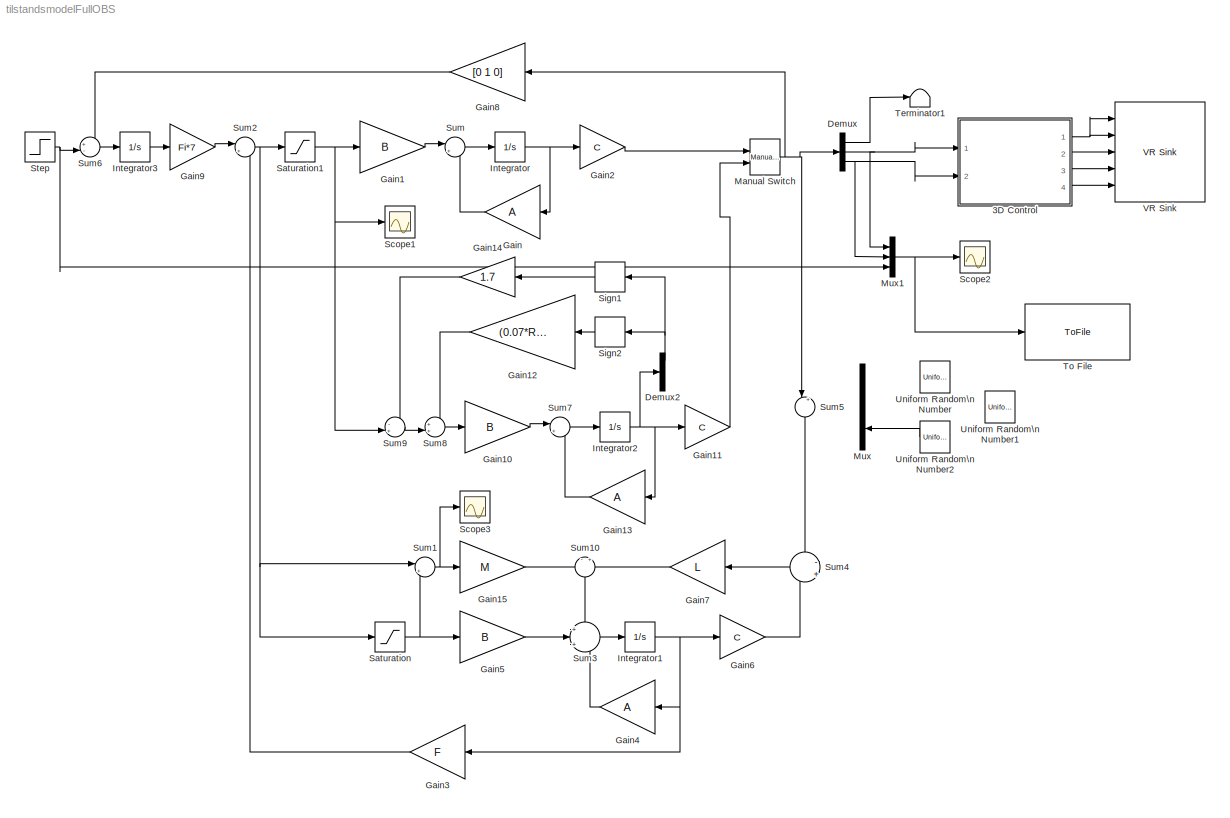
MODEL tilstandsmodelFullOBS
KIND model
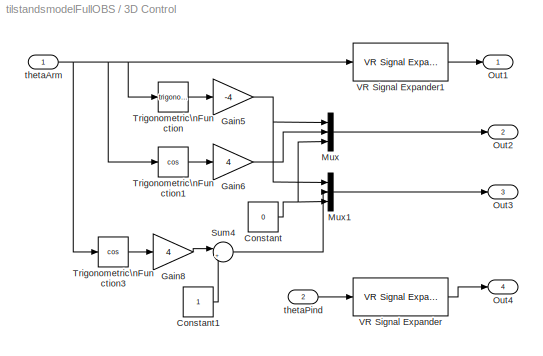
BLOCK [SubSystem] 3D Control
  FunctionWithSeparateData = off
  MaskHideContents = off
  MinAlgLoopOccurrences = off
  Opaque = off
  Ports = [2, 4]
  PropExecContextOutsideSubsystem = off
  RTWSystemCode = Auto
  RequestExecContextInheritance = off
  SID = 9
BLOCK [Constant] 3D Control/Constant
  OutDataType = fixdt(1, 16)
  OutScaling = 2^0
  SID = 12
  Value = 0
BLOCK [Constant] 3D Control/Constant1
  OutDataType = fixdt(1, 16)
  OutScaling = 2^0
  SID = 13
BLOCK [Gain] 3D Control/Gain5
  Gain = -4
  OutDataType = fixdt(1, 16)
  OutDataTypeMode = Inherit via internal rule
  OutDataTypeStr = Inherit: Inherit via internal rule
  OutScaling = 2^0
  ParamDataTypeStr = Inherit: Inherit via internal rule
  ParameterDataType = fixdt(1, 16)
  ParameterDataTypeMode = Inherit via internal rule
  ParameterScaling = 2^0
  SID = 14
  SaturateOnIntegerOverflow = off
BLOCK [Gain] 3D Control/Gain6
  Gain = 4
  OutDataType = fixdt(1, 16)
  OutDataTypeMode = Inherit via internal rule
  OutDataTypeStr = Inherit: Inherit via internal rule
  OutScaling = 2^0
  ParamDataTypeStr = Inherit: Inherit via internal rule
  ParameterDataType = fixdt(1, 16)
  ParameterDataTypeMode = Inherit via internal rule
  ParameterScaling = 2^0
  SID = 15
  SaturateOnIntegerOverflow = off
BLOCK [Gain] 3D Control/Gain8
  Gain = 4
  OutDataType = fixdt(1, 16)
  OutDataTypeMode = Inherit via internal rule
  OutDataTypeStr = Inherit: Inherit via internal rule
  OutScaling = 2^0
  ParamDataTypeStr = Inherit: Inherit via internal rule
  ParameterDataType = fixdt(1, 16)
  ParameterDataTypeMode = Inherit via internal rule
  ParameterScaling = 2^0
  SID = 16
  SaturateOnIntegerOverflow = off
BLOCK [Mux] 3D Control/Mux
  DisplayOption = bar
  Inputs = 3
  Ports = [3, 1]
  SID = 17
BLOCK [Mux] 3D Control/Mux1
  DisplayOption = bar
  Inputs = 3
  Ports = [3, 1]
  SID = 18
BLOCK [Outport] 3D Control/Out1
  IconDisplay = Port number
  OutDataType = fixdt(1, 16)
  OutScaling = 2^0
  SID = 25
BLOCK [Outport] 3D Control/Out2
  IconDisplay = Port number
  OutDataType = fixdt(1, 16)
  OutScaling = 2^0
  Port = 2
  SID = 26
BLOCK [Outport] 3D Control/Out3
  IconDisplay = Port number
  OutDataType = fixdt(1, 16)
  OutScaling = 2^0
  Port = 3
  SID = 27
BLOCK [Outport] 3D Control/Out4
  IconDisplay = Port number
  OutDataType = fixdt(1, 16)
  OutScaling = 2^0
  Port = 4
  SID = 28
BLOCK [Sum] 3D Control/Sum4
  IconShape = round
  InputSameDT = off
  Inputs = |+-
  OutDataType = fixdt(1, 16)
  OutDataTypeMode = Inherit via internal rule
  OutDataTypeStr = Inherit: Inherit via internal rule
  OutScaling = 2^0
  Ports = [2, 1]
  SID = 19
  SaturateOnIntegerOverflow = off
BLOCK [Trigonometry] 3D Control/Trigonometric\nFunction
  Ports = [1, 1]
  SID = 20
BLOCK [Trigonometry] 3D Control/Trigonometric\nFunction1
  Operator = cos
  Ports = [1, 1]
  SID = 21
BLOCK [Trigonometry] 3D Control/Trigonometric\nFunction3
  Operator = cos
  Ports = [1, 1]
  SID = 22
BLOCK [Reference] 3D Control/VR Signal Expander  REF=vrlib/VR Signal Expander
  FunctionWithSeparateData = off
  Ports = [1, 1]
  RTWMemSecDataConstants = Inherit from model
  RTWMemSecDataInternal = Inherit from model
  RTWMemSecDataParameters = Inherit from model
  RTWMemSecFuncExecute = Inherit from model
  RTWMemSecFuncInitTerm = Inherit from model
  SID = 81
  ShowPortLabels = FromPortIcon
  SourceBlock = vrlib/VR Signal Expander
  SourceType = VR Signal Expander
  SystemSampleTime = -1
  outidx = [4]
  outwidth = 4
BLOCK [Reference] 3D Control/VR Signal Expander1  REF=vrlib/VR Signal Expander
  FunctionWithSeparateData = off
  Ports = [1, 1]
  RTWMemSecDataConstants = Inherit from model
  RTWMemSecDataInternal = Inherit from model
  RTWMemSecDataParameters = Inherit from model
  RTWMemSecFuncExecute = Inherit from model
  RTWMemSecFuncInitTerm = Inherit from model
  SID = 82
  ShowPortLabels = FromPortIcon
  SourceBlock = vrlib/VR Signal Expander
  SourceType = VR Signal Expander
  SystemSampleTime = -1
  outidx = [4]
  outwidth = 4
BLOCK [Inport] 3D Control/thetaArm
  IconDisplay = Port number
  OutDataType = fixdt(1, 16)
  OutScaling = 2^0
  SID = 10
BLOCK [Inport] 3D Control/thetaPind
  IconDisplay = Port number
  OutDataType = fixdt(1, 16)
  OutScaling = 2^0
  Port = 2
  SID = 11
BLOCK [Demux] Demux
  DisplayOption = bar
  Outputs = 3
  Ports = [1, 3]
  SID = 8
BLOCK [Demux] Demux2
  DisplayOption = bar
  Ports = [1, 4]
  SID = 255
BLOCK [Gain] Gain
  Gain = A
  Multiplication = Matrix(K*u)
  OutDataType = fixdt(1, 16)
  OutDataTypeMode = Inherit via internal rule
  OutDataTypeStr = Inherit: Inherit via internal rule
  OutScaling = 2^0
  ParamDataTypeStr = Inherit: Inherit via internal rule
  ParameterDataType = fixdt(1, 16)
  ParameterDataTypeMode = Inherit via internal rule
  ParameterScaling = 2^0
  SID = 2
  SaturateOnIntegerOverflow = off
BLOCK [Gain] Gain1
  Gain = B
  Multiplication = Matrix(K*u)
  OutDataType = fixdt(1, 16)
  OutDataTypeMode = Inherit via internal rule
  OutDataTypeStr = Inherit: Inherit via internal rule
  OutScaling = 2^0
  ParamDataTypeStr = Inherit: Inherit via internal rule
  ParameterDataType = fixdt(1, 16)
  ParameterDataTypeMode = Inherit via internal rule
  ParameterScaling = 2^0
  SID = 3
  SaturateOnIntegerOverflow = off
BLOCK [Gain] Gain10
  Gain = B
  Multiplication = Matrix(K*u)
  OutDataType = fixdt(1, 16)
  OutDataTypeMode = Inherit via internal rule
  OutDataTypeStr = Inherit: Inherit via internal rule
  OutScaling = 2^0
  ParamDataTypeStr = Inherit: Inherit via internal rule
  ParameterDataType = fixdt(1, 16)
  ParameterDataTypeMode = Inherit via internal rule
  ParameterScaling = 2^0
  SID = 256
  SaturateOnIntegerOverflow = off
BLOCK [Gain] Gain11
  Gain = C
  Multiplication = Matrix(K*u)
  OutDataType = fixdt(1, 16)
  OutDataTypeMode = Inherit via internal rule
  OutDataTypeStr = Inherit: Inherit via internal rule
  OutScaling = 2^0
  ParamDataTypeStr = Inherit: Inherit via internal rule
  ParameterDataType = fixdt(1, 16)
  ParameterDataTypeMode = Inherit via internal rule
  ParameterScaling = 2^0
  SID = 257
  SaturateOnIntegerOverflow = off
BLOCK [Gain] Gain12
  Gain = (0.07*Rm)/Km
  OutDataType = fixdt(1, 16)
  OutDataTypeMode = Inherit via internal rule
  OutDataTypeStr = Inherit: Inherit via internal rule
  OutScaling = 2^0
  ParamDataTypeStr = Inherit: Inherit via internal rule
  ParameterDataType = fixdt(1, 16)
  ParameterDataTypeMode = Inherit via internal rule
  ParameterScaling = 2^0
  SID = 258
  SaturateOnIntegerOverflow = off
BLOCK [Gain] Gain13
  Gain = A
  Multiplication = Matrix(K*u)
  OutDataType = fixdt(1, 16)
  OutDataTypeMode = Inherit via internal rule
  OutDataTypeStr = Inherit: Inherit via internal rule
  OutScaling = 2^0
  ParamDataTypeStr = Inherit: Inherit via internal rule
  ParameterDataType = fixdt(1, 16)
  ParameterDataTypeMode = Inherit via internal rule
  ParameterScaling = 2^0
  SID = 259
  SaturateOnIntegerOverflow = off
BLOCK [Gain] Gain14
  Gain = 1.7
  OutDataType = fixdt(1, 16)
  OutDataTypeMode = Inherit via internal rule
  OutDataTypeStr = Inherit: Inherit via internal rule
  OutScaling = 2^0
  ParamDataTypeStr = Inherit: Inherit via internal rule
  ParameterDataType = fixdt(1, 16)
  ParameterDataTypeMode = Inherit via internal rule
  ParameterScaling = 2^0
  SID = 260
  SaturateOnIntegerOverflow = off
BLOCK [Gain] Gain15
  Gain = M
  Multiplication = Matrix(K*u)
  OutDataType = fixdt(1, 16)
  OutDataTypeMode = Inherit via internal rule
  OutDataTypeStr = Inherit: Inherit via internal rule
  OutScaling = 2^0
  ParamDataTypeStr = Inherit: Inherit via internal rule
  ParameterDataType = fixdt(1, 16)
  ParameterDataTypeMode = Inherit via internal rule
  ParameterScaling = 2^0
  SID = 245
  SaturateOnIntegerOverflow = off
BLOCK [Gain] Gain2
  Gain = C
  Multiplication = Matrix(K*u)
  OutDataType = fixdt(1, 16)
  OutDataTypeMode = Inherit via internal rule
  OutDataTypeStr = Inherit: Inherit via internal rule
  OutScaling = 2^0
  ParamDataTypeStr = Inherit: Inherit via internal rule
  ParameterDataType = fixdt(1, 16)
  ParameterDataTypeMode = Inherit via internal rule
  ParameterScaling = 2^0
  SID = 4
  SaturateOnIntegerOverflow = off
BLOCK [Gain] Gain3
  Gain = F
  Multiplication = Matrix(K*u)
  OutDataType = fixdt(1, 16)
  OutDataTypeMode = Inherit via internal rule
  OutDataTypeStr = Inherit: Inherit via internal rule
  OutScaling = 2^0
  ParamDataTypeStr = Inherit: Inherit via internal rule
  ParameterDataType = fixdt(1, 16)
  ParameterDataTypeMode = Inherit via internal rule
  ParameterScaling = 2^0
  SID = 57
  SaturateOnIntegerOverflow = off
BLOCK [Gain] Gain4
  Gain = A
  Multiplication = Matrix(K*u)
  OutDataType = fixdt(1, 16)
  OutDataTypeMode = Inherit via internal rule
  OutDataTypeStr = Inherit: Inherit via internal rule
  OutScaling = 2^0
  ParamDataTypeStr = Inherit: Inherit via internal rule
  ParameterDataType = fixdt(1, 16)
  ParameterDataTypeMode = Inherit via internal rule
  ParameterScaling = 2^0
  SID = 83
  SaturateOnIntegerOverflow = off
BLOCK [Gain] Gain5
  Gain = B
  Multiplication = Matrix(K*u)
  OutDataType = fixdt(1, 16)
  OutDataTypeMode = Inherit via internal rule
  OutDataTypeStr = Inherit: Inherit via internal rule
  OutScaling = 2^0
  ParamDataTypeStr = Inherit: Inherit via internal rule
  ParameterDataType = fixdt(1, 16)
  ParameterDataTypeMode = Inherit via internal rule
  ParameterScaling = 2^0
  SID = 84
  SaturateOnIntegerOverflow = off
BLOCK [Gain] Gain6
  Gain = C
  Multiplication = Matrix(K*u)
  OutDataType = fixdt(1, 16)
  OutDataTypeMode = Inherit via internal rule
  OutDataTypeStr = Inherit: Inherit via internal rule
  OutScaling = 2^0
  ParamDataTypeStr = Inherit: Inherit via internal rule
  ParameterDataType = fixdt(1, 16)
  ParameterDataTypeMode = Inherit via internal rule
  ParameterScaling = 2^0
  SID = 85
  SaturateOnIntegerOverflow = off
BLOCK [Gain] Gain7
  Gain = L
  Multiplication = Matrix(K*u)
  OutDataType = fixdt(1, 16)
  OutDataTypeMode = Inherit via internal rule
  OutDataTypeStr = Inherit: Inherit via internal rule
  OutScaling = 2^0
  ParamDataTypeStr = Inherit: Inherit via internal rule
  ParameterDataType = fixdt(1, 16)
  ParameterDataTypeMode = Inherit via internal rule
  ParameterScaling = 2^0
  SID = 88
  SaturateOnIntegerOverflow = off
BLOCK [Gain] Gain8
  Gain = [0 1 0]
  Multiplication = Matrix(K*u)
  OutDataType = fixdt(1, 16)
  OutDataTypeMode = Inherit via internal rule
  OutDataTypeStr = Inherit: Inherit via internal rule
  OutScaling = 2^0
  ParamDataTypeStr = Inherit: Inherit via internal rule
  ParameterDataType = fixdt(1, 16)
  ParameterDataTypeMode = Inherit via internal rule
  ParameterScaling = 2^0
  SID = 90
  SaturateOnIntegerOverflow = off
BLOCK [Gain] Gain9
  Gain = Fi*7
  OutDataType = fixdt(1, 16)
  OutDataTypeMode = Inherit via internal rule
  OutDataTypeStr = Inherit: Inherit via internal rule
  OutScaling = 2^0
  ParamDataTypeStr = Inherit: Inherit via internal rule
  ParameterDataType = fixdt(1, 16)
  ParameterDataTypeMode = Inherit via internal rule
  ParameterScaling = 2^0
  SID = 243
  SaturateOnIntegerOverflow = off
BLOCK [Integrator] Integrator
  InitialCondition = [0 0 0 0]
  Ports = [1, 1]
  SID = 6
BLOCK [Integrator] Integrator1
  InitialCondition = [0 0 0 0]
  Ports = [1, 1]
  SID = 86
BLOCK [Integrator] Integrator2
  InitialCondition = [0 0 0 0]
  Ports = [1, 1]
  SID = 261
BLOCK [Integrator] Integrator3
  InitialCondition = [0]
  Ports = [1, 1]
  SID = 244
BLOCK [Reference] Manual Switch  REF=simulink/Signal\nRouting/Manual Switch
  FunctionWithSeparateData = off
  Ports = [2, 1]
  RTWMemSecDataConstants = Inherit from model
  RTWMemSecDataInternal = Inherit from model
  RTWMemSecDataParameters = Inherit from model
  RTWMemSecFuncExecute = Inherit from model
  RTWMemSecFuncInitTerm = Inherit from model
  SID = 133
  ShowPortLabels = FromPortIcon
  SourceBlock = simulink/Signal\nRouting/Manual Switch
  SourceType = Manual Switch
  SystemSampleTime = -1
  action = 0
  sw = 1
  varsize = off
BLOCK [Mux] Mux
  DisplayOption = bar
  Inputs = 3
  Ports = [3, 1]
  SID = 94
BLOCK [Mux] Mux1
  DisplayOption = bar
  Inputs = 3
  Ports = [3, 1]
  SID = 218
BLOCK [Saturate] Saturation
  LowerLimit = -10
  OutDataType = fixdt(1, 16)
  OutScaling = 2^0
  SID = 246
  UpperLimit = 10
BLOCK [Saturate] Saturation1
  LowerLimit = -10
  OutDataType = fixdt(1, 16)
  OutScaling = 2^0
  SID = 247
  UpperLimit = 10
BLOCK [Scope] Scope1
  DataFormat = StructureWithTime
  Floating = off
  NumInputPorts = 1
  Ports = [1]
  SID = 262
  SampleTime = 0
  SaveName = ScopeData1
  YMax = 10
  YMin = 10
BLOCK [Scope] Scope2
  DataFormat = StructureWithTime
  Floating = off
  NumInputPorts = 1
  Ports = [1]
  SID = 217
  SampleTime = 0
  SaveName = ScopeData2
  YMax = 0.45
  YMin = -0.05
BLOCK [Scope] Scope3
  DataFormat = StructureWithTime
  Floating = off
  NumInputPorts = 1
  Ports = [1]
  SID = 251
  SampleTime = 0
  YMax = 1
  YMin = -1
  ZoomMode = xonly
BLOCK [Signum] Sign1
  SID = 263
  SampleTime = 0.01
BLOCK [Signum] Sign2
  SID = 264
  SampleTime = 0.01
BLOCK [Step] Step
  After = pi/6
  SID = 104
  SampleTime = 0
BLOCK [Sum] Sum
  IconShape = round
  InputSameDT = off
  Inputs = |++
  OutDataType = fixdt(1, 16)
  OutDataTypeMode = Inherit via internal rule
  OutDataTypeStr = Inherit: Inherit via internal rule
  OutScaling = 2^0
  Ports = [2, 1]
  SID = 7
  SaturateOnIntegerOverflow = off
BLOCK [Sum] Sum1
  IconShape = round
  InputSameDT = off
  Inputs = |+-
  OutDataType = fixdt(1, 16)
  OutDataTypeMode = Inherit via internal rule
  OutDataTypeStr = Inherit: Inherit via internal rule
  OutScaling = 2^0
  Ports = [2, 1]
  SID = 248
  SaturateOnIntegerOverflow = off
BLOCK [Sum] Sum10
  IconShape = round
  InputSameDT = off
  Inputs = -|+
  OutDataType = fixdt(1, 16)
  OutDataTypeMode = Inherit via internal rule
  OutDataTypeStr = Inherit: Inherit via internal rule
  OutScaling = 2^0
  Ports = [2, 1]
  SID = 250
  SaturateOnIntegerOverflow = off
BLOCK [Sum] Sum2
  IconShape = round
  InputSameDT = off
  Inputs = |++
  OutDataType = fixdt(1, 16)
  OutDataTypeMode = Inherit via internal rule
  OutDataTypeStr = Inherit: Inherit via internal rule
  OutScaling = 2^0
  Ports = [2, 1]
  SID = 92
  SaturateOnIntegerOverflow = off
BLOCK [Sum] Sum3
  IconShape = round
  InputSameDT = off
  Inputs = +|+|+
  OutDataType = fixdt(1, 16)
  OutDataTypeMode = Inherit via internal rule
  OutDataTypeStr = Inherit: Inherit via internal rule
  OutScaling = 2^0
  Ports = [3, 1]
  SID = 87
  SaturateOnIntegerOverflow = off
BLOCK [Sum] Sum4
  IconShape = round
  InputSameDT = off
  Inputs = -|+
  OutDataType = fixdt(1, 16)
  OutDataTypeMode = Inherit via internal rule
  OutDataTypeStr = Inherit: Inherit via internal rule
  OutScaling = 2^0
  Ports = [2, 1]
  SID = 89
  SaturateOnIntegerOverflow = off
BLOCK [Sum] Sum5
  IconShape = round
  InputSameDT = off
  Inputs = |++
  OutDataType = fixdt(1, 16)
  OutDataTypeMode = Inherit via internal rule
  OutDataTypeStr = Inherit: Inherit via internal rule
  OutScaling = 2^0
  Ports = [2, 1]
  SID = 97
  SaturateOnIntegerOverflow = off
BLOCK [Sum] Sum6
  IconShape = round
  InputSameDT = off
  Inputs = +-|
  OutDataType = fixdt(1, 16)
  OutDataTypeMode = Inherit via internal rule
  OutDataTypeStr = Inherit: Inherit via internal rule
  OutScaling = 2^0
  Ports = [2, 1]
  SID = 99
  SaturateOnIntegerOverflow = off
BLOCK [Sum] Sum7
  IconShape = round
  InputSameDT = off
  Inputs = |++
  OutDataType = fixdt(1, 16)
  OutDataTypeMode = Inherit via internal rule
  OutDataTypeStr = Inherit: Inherit via internal rule
  OutScaling = 2^0
  Ports = [2, 1]
  SID = 265
  SaturateOnIntegerOverflow = off
BLOCK [Sum] Sum8
  IconShape = round
  InputSameDT = off
  Inputs = ++|
  OutDataType = fixdt(1, 16)
  OutDataTypeMode = Inherit via internal rule
  OutDataTypeStr = Inherit: Inherit via internal rule
  OutScaling = 2^0
  Ports = [2, 1]
  SID = 266
  SaturateOnIntegerOverflow = off
BLOCK [Sum] Sum9
  IconShape = round
  InputSameDT = off
  Inputs = -+|
  OutDataType = fixdt(1, 16)
  OutDataTypeMode = Inherit via internal rule
  OutDataTypeStr = Inherit: Inherit via internal rule
  OutScaling = 2^0
  Ports = [2, 1]
  SID = 267
  SaturateOnIntegerOverflow = off
BLOCK [Terminator] Terminator1
  SID = 103
BLOCK [ToFile] To File
  Filename = datafullobs.mat
  SID = 268
BLOCK [UniformRandomNumber] Uniform Random\nNumber
  Minimum = 0
  SID = 93
  SampleTime = 0.1
  Seed = 234567
BLOCK [UniformRandomNumber] Uniform Random\nNumber1
  Maximum = pi/180
  Minimum = -pi/180
  SID = 95
  SampleTime = 0.1
BLOCK [UniformRandomNumber] Uniform Random\nNumber2
  Maximum = pi/180
  Minimum = -pi/180
  SID = 96
  SampleTime = 0.1
BLOCK [Reference] VR Sink  REF=vrlib/VR Sink
  AutoView = off
  FieldsWritten = Ball.rotation.4.1.double#Arm.rotation.4.1.double#Pind.translation.3.1.double#AP.translation.3.1.double#Pind.rotation.4.1.double
  InstantiateOnLoad = on
  Ports = [5]
  RemoteChange = off
  RemoteView = on
  SID = 29
  SampleTime = -1
  SourceBlock = vrlib/VR Sink
  SourceType = Virtual Reality Sink
  VideoDimensions = []
  ViewEnable = on
  WorldFileName = VRML1.WRL
LINE 3D Control/Constant1:1 -> 3D Control/Sum4:2
NET 3D Control/Constant:1 -> 3D Control/Mux1:3, 3D Control/Mux:3
NET 3D Control/Gain5:1 -> 3D Control/Mux1:1, 3D Control/Mux:1
LINE 3D Control/Gain6:1 -> 3D Control/Mux:2
LINE 3D Control/Gain8:1 -> 3D Control/Sum4:1
LINE 3D Control/Mux1:1 -> 3D Control/Out3:1
LINE 3D Control/Mux:1 -> 3D Control/Out2:1
LINE 3D Control/Sum4:1 -> 3D Control/Mux1:2
LINE 3D Control/Trigonometric\nFunction1:1 -> 3D Control/Gain6:1
LINE 3D Control/Trigonometric\nFunction3:1 -> 3D Control/Gain8:1
LINE 3D Control/Trigonometric\nFunction:1 -> 3D Control/Gain5:1
LINE 3D Control/VR Signal Expander1:1 -> 3D Control/Out1:1
LINE 3D Control/VR Signal Expander:1 -> 3D Control/Out4:1
NET 3D Control/thetaArm:1 -> 3D Control/Trigonometric\nFunction1:1, 3D Control/Trigonometric\nFunction3:1, 3D Control/Trigonometric\nFunction:1, 3D Control/VR Signal Expander1:1
LINE 3D Control/thetaPind:1 -> 3D Control/VR Signal Expander:1
NET 3D Control:1 -> VR Sink:1, VR Sink:2
LINE 3D Control:2 -> VR Sink:3
LINE 3D Control:3 -> VR Sink:4
LINE 3D Control:4 -> VR Sink:5
NET Demux2:1 -> Sign1:1, Sign2:1
LINE Demux:1 -> Terminator1:1
NET Demux:2 -> 3D Control:1, Mux1:1
NET Demux:3 -> 3D Control:2, Mux1:2
LINE Gain10:1 -> Sum7:1
LINE Gain11:1 -> Manual Switch:2
LINE Gain12:1 -> Sum8:1
LINE Gain13:1 -> Sum7:2
LINE Gain14:1 -> Sum9:1
LINE Gain15:1 -> Sum10:1
LINE Gain1:1 -> Sum:1
LINE Gain2:1 -> Manual Switch:1
LINE Gain3:1 -> Sum2:2
LINE Gain4:1 -> Sum3:3
LINE Gain5:1 -> Sum3:2
LINE Gain6:1 -> Sum4:2
LINE Gain7:1 -> Sum10:2
LINE Gain8:1 -> Sum6:1
LINE Gain9:1 -> Sum2:1
LINE Gain:1 -> Sum:2
NET Integrator1:1 -> Gain3:1, Gain4:1, Gain6:1
NET Integrator2:1 -> Demux2:1, Gain11:1, Gain13:1
LINE Integrator3:1 -> Gain9:1
NET Integrator:1 -> Gain2:1, Gain:1
NET Manual Switch:1 -> Demux:1, Gain8:1, Sum5:1
NET Mux1:1 -> Scope2:1, To File:1
NET Saturation1:1 -> Gain1:1, Scope1:1, Sum9:2
NET Saturation:1 -> Gain5:1, Sum1:2
LINE Sign1:1 -> Gain14:1
LINE Sign2:1 -> Gain12:1
NET Step:1 -> Mux1:3, Sum6:2
LINE Sum10:1 -> Sum3:1
NET Sum1:1 -> Gain15:1, Scope3:1
NET Sum2:1 -> Saturation1:1, Saturation:1, Sum1:1
LINE Sum3:1 -> Integrator1:1
LINE Sum4:1 -> Gain7:1
LINE Sum5:1 -> Sum4:1
LINE Sum6:1 -> Integrator3:1
LINE Sum7:1 -> Integrator2:1
LINE Sum8:1 -> Gain10:1
LINE Sum9:1 -> Sum8:2
LINE Sum:1 -> Integrator:1
LINE Uniform Random\nNumber2:1 -> Mux:3
note: NET lines group one-source signal fan-out (src -> all destinations, sorted); 1:1 wires keep LINE
